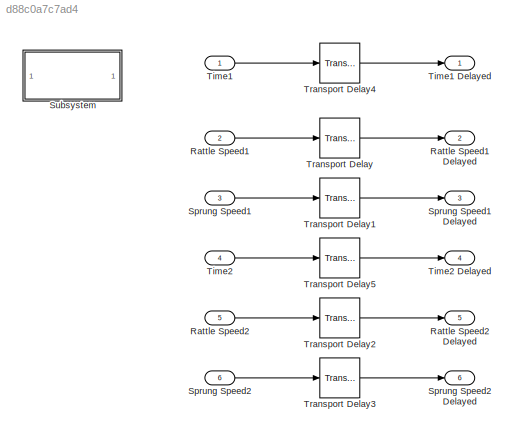
MODEL slx_d88c0a7c7ad4
KIND model
CONFIG AbsTol = auto
CONFIG EnableMultiTasking = off
CONFIG FixedStep = 0.001
CONFIG MaxStep = auto
CONFIG MinStep = auto
CONFIG RelTol = 1e-3
CONFIG SampleTimeConstraint = Unconstrained
CONFIG SolverName = ode1
CONFIG StartTime = 0.0
CONFIG StopTime = inf
BLOCK [Inport] Rattle Speed1
  Port = 2
BLOCK [Outport] Rattle Speed1 Delayed
  Port = 2
BLOCK [Inport] Rattle Speed2
  Port = 5
BLOCK [Outport] Rattle Speed2 Delayed
  Port = 5
BLOCK [Inport] Sprung Speed1
  Port = 3
BLOCK [Outport] Sprung Speed1 Delayed
  Port = 3
BLOCK [Inport] Sprung Speed2
  Port = 6
BLOCK [Outport] Sprung Speed2 Delayed
  Port = 6
BLOCK [SubSystem] Subsystem
  OpenFcn = k_tire = 225400;  %200000 in literature\nc_tire = 100;        % Estimated. In literatures 6N\nk_susp =  25000;  % 15000 in literature\nc_susp = 400;       %1429 Ns/m in literature\ng = 0 % 9.8; Removed to avoid initialization problems\nm_unsprung = 66;\nm_sprung = 449.25;\nX_sprung0  = .5;\nX_unsprung0  = .1;\ndelayTimeCarToDamper =  0.002;\n%InitQuarterCarCompensatorScript;\n%Amplitude =.01;
  Ports = []
  RequestExecContextInheritance = off
BLOCK [Inport] Time1
BLOCK [Outport] Time1 Delayed
BLOCK [Inport] Time2
  Port = 4
BLOCK [Outport] Time2 Delayed
  Port = 4
BLOCK [TransportDelay] Transport Delay
  DelayTime = delayTimeCarToDamper
  Ports = [1, 1]
BLOCK [TransportDelay] Transport Delay1
  DelayTime = delayTimeCarToDamper
  Ports = [1, 1]
BLOCK [TransportDelay] Transport Delay2
  DelayTime = delayTimeCarToDamper
  Ports = [1, 1]
BLOCK [TransportDelay] Transport Delay3
  DelayTime = delayTimeCarToDamper
  Ports = [1, 1]
BLOCK [TransportDelay] Transport Delay4
  DelayTime = delayTimeCarToDamper
  Ports = [1, 1]
BLOCK [TransportDelay] Transport Delay5
  DelayTime = delayTimeCarToDamper
  Ports = [1, 1]
LINE Rattle Speed1:1 -> Transport Delay:1
LINE Rattle Speed2:1 -> Transport Delay2:1
LINE Sprung Speed1:1 -> Transport Delay1:1
LINE Sprung Speed2:1 -> Transport Delay3:1
LINE Time1:1 -> Transport Delay4:1
LINE Time2:1 -> Transport Delay5:1
LINE Transport Delay1:1 -> Sprung Speed1 Delayed:1
LINE Transport Delay2:1 -> Rattle Speed2 Delayed:1
LINE Transport Delay3:1 -> Sprung Speed2 Delayed:1
LINE Transport Delay4:1 -> Time1 Delayed:1
LINE Transport Delay5:1 -> Time2 Delayed:1
LINE Transport Delay:1 -> Rattle Speed1 Delayed:1
